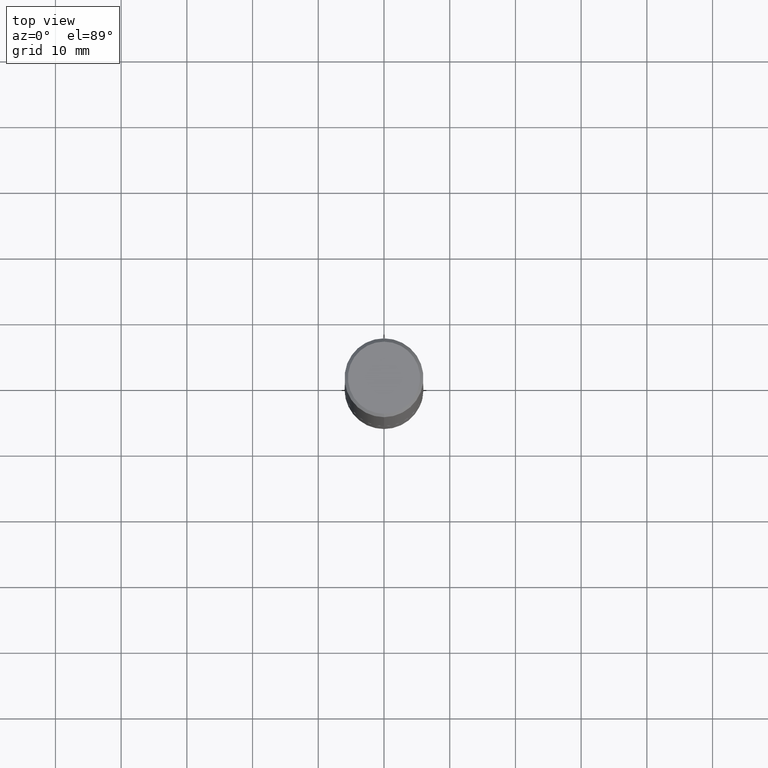
[diagram: clean part render]
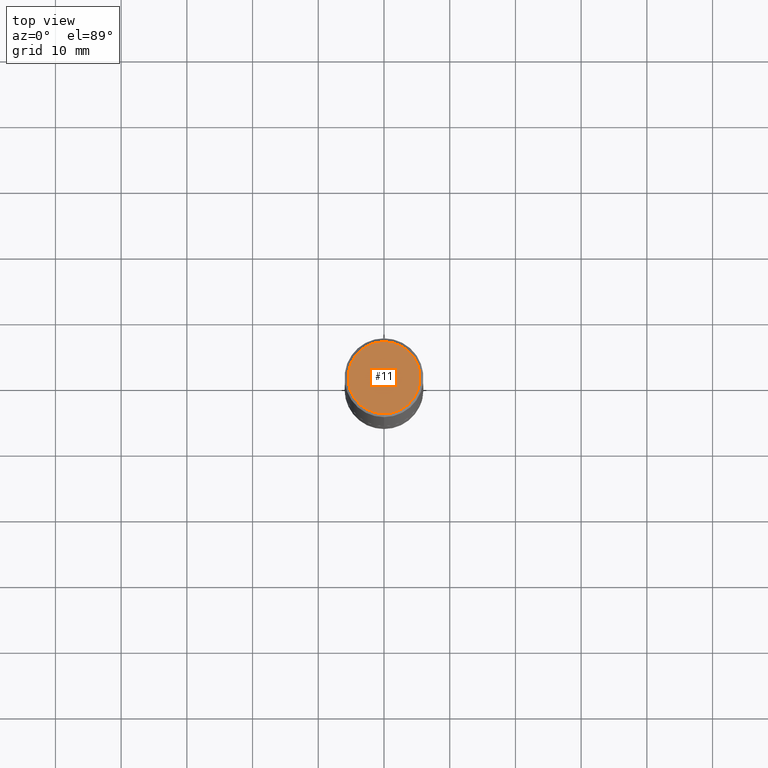
[diagram: same view with one face highlighted and labeled with its STEP entity id]
A machine part, top view. The second image highlights one B-rep face of the part: STEP entity #11.
In plain terms, the highlighted planar face has unit normal (0, -0, -1).
Its self-contained STEP definition (entity closure, byte-faithful):
#11 = ADVANCED_FACE ( 'NONE', ( #138 ), #78, .F. ) ;
#67 = DIRECTION ( 'NONE',  ( 2.446209613660721584E-29, -3.490420460373964582E-15, -1.000000000000000000 ) ) ;
#74 = CARTESIAN_POINT ( 'NONE',  ( -1.551844647095920142E-15, -0.2162000000000000866, 6.220756544147017291E-16 ) ) ;
#78 = PLANE ( 'NONE',  #267 ) ;
#86 = AXIS2_PLACEMENT_3D ( 'NONE', #191, #161, #229 ) ;
#90 = ORIENTED_EDGE ( 'NONE', *, *, #245, .T. ) ;
#113 = CARTESIAN_POINT ( 'NONE',  ( 1.579546157692633621E-15, 0.2162000000000000866, -8.871821526510011499E-16 ) ) ;
#138 = FACE_OUTER_BOUND ( 'NONE', #198, .T. ) ;
#144 = DIRECTION ( 'NONE',  ( -2.446209613660721864E-29, 3.490420460373964582E-15, 1.000000000000000000 ) ) ;
#161 = DIRECTION ( 'NONE',  ( -2.446209613660721864E-29, 3.490420460373964582E-15, 1.000000000000000000 ) ) ;
#172 = ORIENTED_EDGE ( 'NONE', *, *, #350, .T. ) ;
#179 = DIRECTION ( 'NONE',  ( 6.982962677686265922E-15, 1.000000000000000000, -3.490420460373964582E-15 ) ) ;
#191 = CARTESIAN_POINT ( 'NONE',  ( 3.242530323147823351E-45, -4.626665728110367904E-31, -1.325532491181496858E-16 ) ) ;
#198 = EDGE_LOOP ( 'NONE', ( #90, #172 ) ) ;
#224 = AXIS2_PLACEMENT_3D ( 'NONE', #412, #144, #237 ) ;
#229 = DIRECTION ( 'NONE',  ( -6.982962677686265922E-15, -1.000000000000000000, 3.490420460373964582E-15 ) ) ;
#237 = DIRECTION ( 'NONE',  ( -6.982962677686265922E-15, -1.000000000000000000, 3.490420460373964582E-15 ) ) ;
#245 = EDGE_CURVE ( 'NONE', #306, #278, #339, .T. ) ;
#267 = AXIS2_PLACEMENT_3D ( 'NONE', #338, #67, #179 ) ;
#274 = CIRCLE ( 'NONE', #224, 0.2162000000000000866 ) ;
#278 = VERTEX_POINT ( 'NONE', #74 ) ;
#306 = VERTEX_POINT ( 'NONE', #113 ) ;
#338 = CARTESIAN_POINT ( 'NONE',  ( 1.509716530915771309E-15, 0.2162000000000000866, -8.209055280919261961E-16 ) ) ;
#339 = CIRCLE ( 'NONE', #86, 0.2162000000000000866 ) ;
#350 = EDGE_CURVE ( 'NONE', #278, #306, #274, .T. ) ;
#412 = CARTESIAN_POINT ( 'NONE',  ( 3.242530323147823351E-45, -4.626665728110367904E-31, -1.325532491181496858E-16 ) ) ;